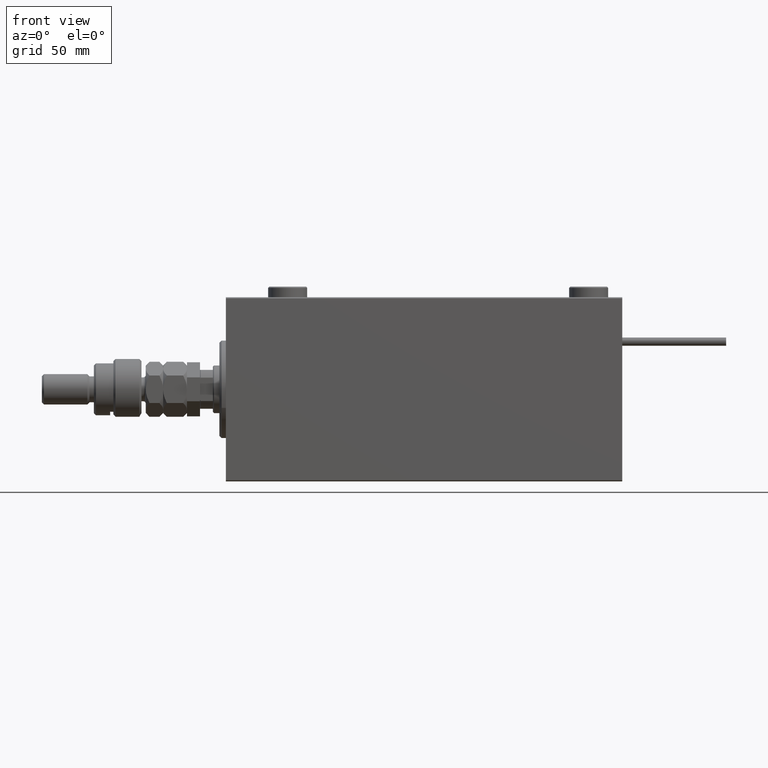
[diagram: clean part render]
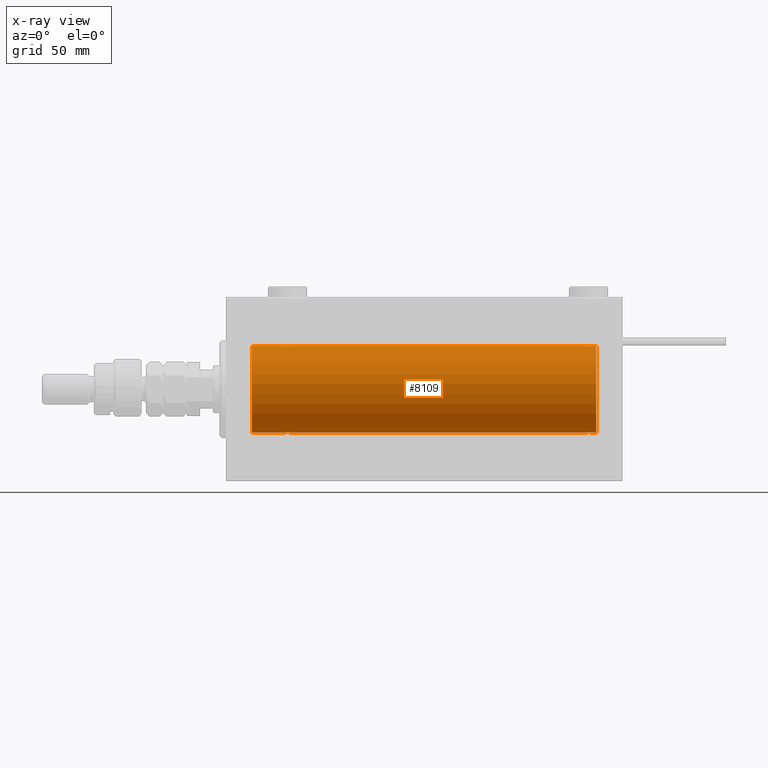
[diagram: x-ray — body ghosted, one internal face saturated and labeled with its STEP entity id]
A machine part, front view, then the same camera in x-ray: the body is ghosted and one INTERNAL B-rep face — a face not visible from any outside direction — is saturated and labeled: STEP entity #8109.
In plain terms, the highlighted cylindrical surface (partial cylindrical patch) has radius 20 mm, axis along (-1, -0, -0).
Its self-contained STEP definition (entity closure, byte-faithful):
#442 = AXIS2_PLACEMENT_3D ( 'NONE', #46561, #5329, #29827 ) ;
#1866 = CARTESIAN_POINT ( 'NONE',  ( 28.76077256031568652, -1.987205673487814739, 19.90104673894211018 ) ) ;
#1987 = CARTESIAN_POINT ( 'NONE',  ( 30.50000000000000000, 2.449293582768389958E-15, -20.00000000000000000 ) ) ;
#2045 = CARTESIAN_POINT ( 'NONE',  ( 166.2797105420553407, -1.589957321664216661, 19.93683391378736403 ) ) ;
#2224 = VERTEX_POINT ( 'NONE', #46183 ) ;
#2262 = CARTESIAN_POINT ( 'NONE',  ( 30.09941524884030528, -1.228758402364235724, -19.96307487248084911 ) ) ;
#2683 = DIRECTION ( 'NONE',  ( -1.000000000000000000, -0.000000000000000000, -0.000000000000000000 ) ) ;
#2915 = EDGE_CURVE ( 'NONE', #19565, #9899, #53775, .T. ) ;
#4389 = VECTOR ( 'NONE', #2683, 1000.000000000000000 ) ;
#4486 = CARTESIAN_POINT ( 'NONE',  ( 167.7635814409141233, -1.986835489085827966, -19.90108393514800511 ) ) ;
#4630 = DIRECTION ( 'NONE',  ( -1.000000000000000000, -0.000000000000000000, -0.000000000000000000 ) ) ;
#5299 = CARTESIAN_POINT ( 'NONE',  ( 169.2482591346001470, -1.005710574260847645, -19.97614991974274190 ) ) ;
#5329 = DIRECTION ( 'NONE',  ( -1.000000000000000000, -0.000000000000000000, -0.000000000000000000 ) ) ;
#5435 = CARTESIAN_POINT ( 'NONE',  ( 26.90058475115969827, -1.228758402364238833, 19.96307487248084911 ) ) ;
#5564 = CARTESIAN_POINT ( 'NONE',  ( 30.24825913460018256, -1.005710574260840096, -19.97614991974273835 ) ) ;
#5836 = CARTESIAN_POINT ( 'NONE',  ( 26.90225308445270613, -1.230936344679281369, -19.96293863536309487 ) ) ;
#6659 = CARTESIAN_POINT ( 'NONE',  ( 29.82306668919470027, -1.505486175075773314, -19.94347168299866979 ) ) ;
#6672 = CARTESIAN_POINT ( 'NONE',  ( 165.4999999999999716, -1.553188236289650144E-23, 20.00000000000000000 ) ) ;
#6995 = CARTESIAN_POINT ( 'NONE',  ( 168.8209690684728628, -1.507328959728495121, 19.94333197382385592 ) ) ;
#7061 = VECTOR ( 'NONE', #34896, 1000.000000000000000 ) ;
#7252 = CARTESIAN_POINT ( 'NONE',  ( 12.00000000000001066, 0.000000000000000000, 0.000000000000000000 ) ) ;
#7270 = CARTESIAN_POINT ( 'NONE',  ( 169.0977469155473045, -1.230936344679282257, 19.96293863536309843 ) ) ;
#7549 = CARTESIAN_POINT ( 'NONE',  ( 168.0164853291890950, -1.936551476643003200, 19.90603968831099024 ) ) ;
#8109 = ADVANCED_FACE ( 'NONE', ( #30095 ), #13033, .F. ) ;
#8279 = DIRECTION ( 'NONE',  ( -1.000000000000000000, -0.000000000000000000, -0.000000000000000000 ) ) ;
#8352 = CARTESIAN_POINT ( 'NONE',  ( 165.4999999999999716, -1.510525576716094838E-14, -20.00000000000000000 ) ) ;
#8934 = ORIENTED_EDGE ( 'NONE', *, *, #48884, .F. ) ;
#9127 = EDGE_CURVE ( 'NONE', #33357, #12935, #42286, .T. ) ;
#9155 = CARTESIAN_POINT ( 'NONE',  ( 166.2819458052784398, -1.591668229360214903, -19.93669678979811977 ) ) ;
#9424 = CARTESIAN_POINT ( 'NONE',  ( 166.8565147126695649, -1.898187925611359850, -19.90978194174746463 ) ) ;
#9899 = VERTEX_POINT ( 'NONE', #10090 ) ;
#10082 = ORIENTED_EDGE ( 'NONE', *, *, #40158, .T. ) ;
#10090 = CARTESIAN_POINT ( 'NONE',  ( 171.0000000000000000, 0.000000000000000000, 20.00000000000000000 ) ) ;
#10098 = CARTESIAN_POINT ( 'NONE',  ( 29.01648532918905232, -1.936551476643010528, 19.90603968831098314 ) ) ;
#10229 = CARTESIAN_POINT ( 'NONE',  ( 30.50000000000000000, -0.2610801504281901053, -20.00000000000000000 ) ) ;
#10371 = CARTESIAN_POINT ( 'NONE',  ( 27.85369326075355190, -1.897222639860601578, 19.90987429971495715 ) ) ;
#11381 = CARTESIAN_POINT ( 'NONE',  ( 169.2468697630307304, -1.008108445278674825, 19.97602680192586888 ) ) ;
#11614 = LINE ( 'NONE', #28389, #50826 ) ;
#11663 = CARTESIAN_POINT ( 'NONE',  ( 167.7607725603157007, -1.987205673487809854, 19.90104673894210308 ) ) ;
#12459 = CARTESIAN_POINT ( 'NONE',  ( 168.7202894579446593, -1.589957321664208001, -19.93683391378736403 ) ) ;
#12552 = VERTEX_POINT ( 'NONE', #33545 ) ;
#12731 = CARTESIAN_POINT ( 'NONE',  ( 165.7531302369692980, -1.008108445278692589, -19.97602680192585822 ) ) ;
#12786 = CARTESIAN_POINT ( 'NONE',  ( 30.50000000000000000, -9.453669475664189070E-16, 20.00000000000000000 ) ) ;
#12935 = VERTEX_POINT ( 'NONE', #22181 ) ;
#13033 = CYLINDRICAL_SURFACE ( 'NONE', #442, 20.00000000000000000 ) ;
#13268 = CARTESIAN_POINT ( 'NONE',  ( 168.3882943720709022, -1.796691196322330653, -19.91919800395357143 ) ) ;
#13459 = EDGE_CURVE ( 'NONE', #33357, #35495, #14398, .T. ) ;
#13687 = CARTESIAN_POINT ( 'NONE',  ( 29.71805419472152110, -1.591668229360197806, 19.93669678979812687 ) ) ;
#13735 = CARTESIAN_POINT ( 'NONE',  ( 171.0000000000000000, 0.000000000000000000, 20.00000000000000000 ) ) ;
#13918 = CARTESIAN_POINT ( 'NONE',  ( 26.50000000000000355, -6.257798774011376898E-15, -20.00000000000000000 ) ) ;
#13934 = CARTESIAN_POINT ( 'NONE',  ( 171.0000000000000000, 0.000000000000000000, 0.000000000000000000 ) ) ;
#14075 = CARTESIAN_POINT ( 'NONE',  ( 27.17903093152711591, -1.507328959728495787, -19.94333197382386302 ) ) ;
#14343 = CARTESIAN_POINT ( 'NONE',  ( 27.49932780860757475, -1.736582545981378845, -19.92459705242981371 ) ) ;
#14398 = LINE ( 'NONE', #18783, #22212 ) ;
#14882 = CARTESIAN_POINT ( 'NONE',  ( 27.61420923329272981, -1.797933656607920039, -19.91908554465558367 ) ) ;
#14943 = CARTESIAN_POINT ( 'NONE',  ( 166.6117056279290409, -1.796691196322318218, 19.91919800395357143 ) ) ;
#15491 = CARTESIAN_POINT ( 'NONE',  ( 165.7517408653997677, -1.005710574260844758, 19.97614991974274190 ) ) ;
#15834 = VECTOR ( 'NONE', #4630, 1000.000000000000000 ) ;
#15984 = DIRECTION ( 'NONE',  ( -1.000000000000000000, -0.000000000000000000, -0.000000000000000000 ) ) ;
#16843 = CARTESIAN_POINT ( 'NONE',  ( 166.4993278086076032, -1.736582545981393277, -19.92459705242980661 ) ) ;
#16847 = VERTEX_POINT ( 'NONE', #31060 ) ;
#16991 = CARTESIAN_POINT ( 'NONE',  ( 171.0000000000000000, 2.449293598294706513E-15, -20.00000000000000000 ) ) ;
#17117 = CARTESIAN_POINT ( 'NONE',  ( 165.5532051580820223, -0.5270924491156762093, -19.99450181871976184 ) ) ;
#17535 = CARTESIAN_POINT ( 'NONE',  ( 30.50000000000000000, -0.2644051013330992461, 19.99999999999999645 ) ) ;
#17538 = LINE ( 'NONE', #16991, #15834 ) ;
#17813 = CARTESIAN_POINT ( 'NONE',  ( 26.75174086539980678, -1.005710574260844092, 19.97614991974273835 ) ) ;
#18218 = VERTEX_POINT ( 'NONE', #32021 ) ;
#18279 = VERTEX_POINT ( 'NONE', #32571 ) ;
#18336 = CARTESIAN_POINT ( 'NONE',  ( 29.14348528733042443, -1.898187925611342974, 19.90978194174746818 ) ) ;
#18366 = ORIENTED_EDGE ( 'NONE', *, *, #44180, .T. ) ;
#18386 = LINE ( 'NONE', #13735, #7061 ) ;
#18783 = CARTESIAN_POINT ( 'NONE',  ( 171.0000000000000000, 0.000000000000000000, 20.00000000000000000 ) ) ;
#19002 = CARTESIAN_POINT ( 'NONE',  ( 29.14630673924644100, -1.897222639860597360, -19.90987429971497136 ) ) ;
#19124 = ORIENTED_EDGE ( 'NONE', *, *, #22037, .T. ) ;
#19361 = B_SPLINE_CURVE_WITH_KNOTS ( 'NONE', 3,
 ( #34584, #31277, #26614, #17813, #5435, #22475, #21940, #34851, #38703, #10371, #39240, #43100, #47762, #51366, #1866, #10098, #18336, #34319, #47493, #13687, #51086, #52168, #22737, #43367, #17535, #27147 ),
 .UNSPECIFIED., .F., .F.,
 ( 4, 2, 2, 2, 2, 2, 2, 2, 2, 2, 2, 2, 4 ),
 ( 0.006256819553329818866, 0.007038738568778795009, 0.007820657584227770284, 0.008211617091952255754, 0.008602576599676739488, 0.008993536107401223223, 0.009384495615125706958, 0.009775455122850190692, 0.01016641463057467443, 0.01055737413829915816, 0.01094833364602364190, 0.01173025266147261110, 0.01251217167692157857 ),
 .UNSPECIFIED. ) ;
#19565 = VERTEX_POINT ( 'NONE', #53353 ) ;
#19613 = CARTESIAN_POINT ( 'NONE',  ( 165.4999999999999716, -1.553188236289650144E-23, 20.00000000000000000 ) ) ;
#20674 = EDGE_CURVE ( 'NONE', #2224, #25868, #35627, .T. ) ;
#21242 = CARTESIAN_POINT ( 'NONE',  ( 168.5030655633959782, -1.735203193119897014, -19.92471783160911158 ) ) ;
#21515 = CARTESIAN_POINT ( 'NONE',  ( 166.1790309315270804, -1.507328959728508666, -19.94333197382385947 ) ) ;
#21940 = CARTESIAN_POINT ( 'NONE',  ( 27.27971054205535495, -1.589957321664213552, 19.93683391378736047 ) ) ;
#22037 = EDGE_CURVE ( 'NONE', #53749, #2224, #41529, .T. ) ;
#22181 = CARTESIAN_POINT ( 'NONE',  ( 169.4999999999999716, 6.438096668033870730E-15, 20.00000000000000000 ) ) ;
#22212 = VECTOR ( 'NONE', #30657, 1000.000000000000000 ) ;
#22328 = CARTESIAN_POINT ( 'NONE',  ( 29.38829437207092354, -1.796691196322319994, -19.91919800395357498 ) ) ;
#22421 = B_SPLINE_CURVE_WITH_KNOTS ( 'NONE', 3,
 ( #50407, #37757, #45988, #5299, #33632, #30061, #12459, #21242, #13268, #29794, #25659, #4486, #38026, #33907, #46798, #38557, #9424, #25120, #16843, #9155, #21515, #42412, #12731, #17117, #50943, #8352 ),
 .UNSPECIFIED., .F., .F.,
 ( 4, 2, 2, 2, 2, 2, 2, 2, 2, 2, 2, 2, 4 ),
 ( 0.006256819553329819733, 0.007038738568778733426, 0.007820657584227647119, 0.008211617091952132588, 0.008602576599676618058, 0.008993536107401105262, 0.009384495615125590731, 0.009775455122850077935, 0.01016641463057456340, 0.01055737413829905061, 0.01094833364602353781, 0.01173025266147256773, 0.01251217167692160112 ),
 .UNSPECIFIED. ) ;
#22475 = CARTESIAN_POINT ( 'NONE',  ( 27.17693331080529973, -1.505486175075776645, 19.94347168299866979 ) ) ;
#22540 = ORIENTED_EDGE ( 'NONE', *, *, #9127, .T. ) ;
#22601 = CARTESIAN_POINT ( 'NONE',  ( 26.50000000000000355, -6.257798774011376898E-15, -20.00000000000000000 ) ) ;
#22737 = CARTESIAN_POINT ( 'NONE',  ( 30.24686976303072328, -1.008108445278688148, 19.97602680192586533 ) ) ;
#23416 = CARTESIAN_POINT ( 'NONE',  ( 29.01923512135277150, -1.935816449315127308, -19.90611141657401362 ) ) ;
#23476 = CARTESIAN_POINT ( 'NONE',  ( 165.9005847511596983, -1.228758402364247049, 19.96307487248084911 ) ) ;
#23533 = ORIENTED_EDGE ( 'NONE', *, *, #36305, .F. ) ;
#23744 = CARTESIAN_POINT ( 'NONE',  ( 166.8536932607535164, -1.897222639860597360, 19.90987429971496780 ) ) ;
#25055 = CARTESIAN_POINT ( 'NONE',  ( 12.00000000000001066, 0.000000000000000000, 20.00000000000000000 ) ) ;
#25120 = CARTESIAN_POINT ( 'NONE',  ( 166.6142092332927405, -1.797933656607938691, -19.91908554465557657 ) ) ;
#25136 = AXIS2_PLACEMENT_3D ( 'NONE', #7252, #44609, #48205 ) ;
#25659 = CARTESIAN_POINT ( 'NONE',  ( 168.0192351213528070, -1.935816449315140408, -19.90611141657402072 ) ) ;
#25868 = VERTEX_POINT ( 'NONE', #25055 ) ;
#26614 = CARTESIAN_POINT ( 'NONE',  ( 26.55244937117491943, -0.5243189001515041747, 19.99457699142850231 ) ) ;
#26738 = CARTESIAN_POINT ( 'NONE',  ( 29.50306556339602082, -1.735203193119896348, -19.92471783160911158 ) ) ;
#27147 = CARTESIAN_POINT ( 'NONE',  ( 30.50000000000000000, -9.453669475664189070E-16, 20.00000000000000000 ) ) ;
#27336 = CARTESIAN_POINT ( 'NONE',  ( 165.4999999999999716, -0.2610801504281917151, 20.00000000000000000 ) ) ;
#27548 = CARTESIAN_POINT ( 'NONE',  ( 27.85651471266958978, -1.898187925611340976, -19.90978194174746818 ) ) ;
#27608 = CARTESIAN_POINT ( 'NONE',  ( 167.2364185590858483, -1.986835489085821527, 19.90108393514801932 ) ) ;
#27710 = VECTOR ( 'NONE', #8279, 1000.000000000000000 ) ;
#28160 = CARTESIAN_POINT ( 'NONE',  ( 169.4467948419180345, -0.5270924491156583347, 19.99450181871976184 ) ) ;
#28389 = CARTESIAN_POINT ( 'NONE',  ( 171.0000000000000000, 0.000000000000000000, 20.00000000000000000 ) ) ;
#28438 = CARTESIAN_POINT ( 'NONE',  ( 168.1434852873304067, -1.898187925611338978, 19.90978194174746818 ) ) ;
#29794 = CARTESIAN_POINT ( 'NONE',  ( 168.1463067392464268, -1.897222639860608906, -19.90987429971496070 ) ) ;
#29827 = DIRECTION ( 'NONE',  ( 0.000000000000000000, 0.000000000000000000, 1.000000000000000000 ) ) ;
#30061 = CARTESIAN_POINT ( 'NONE',  ( 168.8230666891946896, -1.505486175075791966, -19.94347168299867690 ) ) ;
#30095 = FACE_OUTER_BOUND ( 'NONE', #33157, .T. ) ;
#30657 = DIRECTION ( 'NONE',  ( -1.000000000000000000, -0.000000000000000000, -0.000000000000000000 ) ) ;
#30869 = CARTESIAN_POINT ( 'NONE',  ( 28.23922743968432414, -1.987205673487811630, -19.90104673894211018 ) ) ;
#31060 = CARTESIAN_POINT ( 'NONE',  ( 30.50000000000000000, 2.449293582768389958E-15, -20.00000000000000000 ) ) ;
#31135 = CARTESIAN_POINT ( 'NONE',  ( 26.55320515808203297, -0.5270924491156746550, -19.99450181871975829 ) ) ;
#31277 = CARTESIAN_POINT ( 'NONE',  ( 26.50000000000001421, -0.2610801504281932695, 20.00000000000000000 ) ) ;
#31408 = CARTESIAN_POINT ( 'NONE',  ( 29.72028945794465216, -1.589957321664210665, -19.93683391378736047 ) ) ;
#31732 = CARTESIAN_POINT ( 'NONE',  ( 167.6305887171083953, -2.000100592782557474, 19.89973863218036243 ) ) ;
#32021 = CARTESIAN_POINT ( 'NONE',  ( 169.4999999999999716, 2.449293582762473501E-15, -20.00000000000000000 ) ) ;
#32552 = ORIENTED_EDGE ( 'NONE', *, *, #40227, .T. ) ;
#32571 = CARTESIAN_POINT ( 'NONE',  ( 165.4999999999999716, -1.510525576716094838E-14, -20.00000000000000000 ) ) ;
#33157 = EDGE_LOOP ( 'NONE', ( #42314, #48341, #10082, #34255, #32552, #19124, #36691, #8934, #18366, #43557, #22540, #23533 ) ) ;
#33357 = VERTEX_POINT ( 'NONE', #6672 ) ;
#33545 = CARTESIAN_POINT ( 'NONE',  ( 26.50000000000000355, -1.552596590610734385E-23, 20.00000000000000000 ) ) ;
#33599 = EDGE_CURVE ( 'NONE', #18279, #16847, #17538, .T. ) ;
#33632 = CARTESIAN_POINT ( 'NONE',  ( 169.0994152488403302, -1.228758402364252822, -19.96307487248083845 ) ) ;
#33907 = CARTESIAN_POINT ( 'NONE',  ( 167.3694112828916616, -2.000100592782568576, -19.89973863218036243 ) ) ;
#34255 = ORIENTED_EDGE ( 'NONE', *, *, #33599, .T. ) ;
#34319 = CARTESIAN_POINT ( 'NONE',  ( 29.38579076670728440, -1.797933656607920261, 19.91908554465558367 ) ) ;
#34584 = CARTESIAN_POINT ( 'NONE',  ( 26.50000000000000355, -1.552596590610734385E-23, 20.00000000000000000 ) ) ;
#34713 = CARTESIAN_POINT ( 'NONE',  ( 30.44755062882508412, -0.5243189001515006220, -19.99457699142850231 ) ) ;
#34851 = CARTESIAN_POINT ( 'NONE',  ( 27.49693443660398273, -1.735203193119900344, 19.92471783160911158 ) ) ;
#34896 = DIRECTION ( 'NONE',  ( -1.000000000000000000, -0.000000000000000000, -0.000000000000000000 ) ) ;
#35495 = VERTEX_POINT ( 'NONE', #12786 ) ;
#35627 = CIRCLE ( 'NONE', #25136, 20.00000000000000000 ) ;
#35786 = CARTESIAN_POINT ( 'NONE',  ( 27.98351467081095123, -1.936551476643008529, -19.90603968831098314 ) ) ;
#36305 = EDGE_CURVE ( 'NONE', #9899, #12935, #18386, .T. ) ;
#36394 = CARTESIAN_POINT ( 'NONE',  ( 166.1769333108053104, -1.505486175075782196, 19.94347168299868045 ) ) ;
#36691 = ORIENTED_EDGE ( 'NONE', *, *, #20674, .T. ) ;
#37757 = CARTESIAN_POINT ( 'NONE',  ( 169.4999999999999432, -0.2610801504281899388, -19.99999999999999645 ) ) ;
#38026 = CARTESIAN_POINT ( 'NONE',  ( 167.6336519614244764, -1.999898234284076981, -19.89975896996866211 ) ) ;
#38557 = CARTESIAN_POINT ( 'NONE',  ( 166.9835146708108766, -1.936551476643014080, -19.90603968831098669 ) ) ;
#38703 = CARTESIAN_POINT ( 'NONE',  ( 27.61170562792909777, -1.796691196322324213, 19.91919800395357498 ) ) ;
#39240 = CARTESIAN_POINT ( 'NONE',  ( 27.98076487864723561, -1.935816449315131749, 19.90611141657401362 ) ) ;
#39450 = B_SPLINE_CURVE_WITH_KNOTS ( 'NONE', 3,
 ( #1987, #10229, #34713, #5564, #2262, #6659, #31408, #26738, #22328, #19002, #23416, #48164, #43492, #48435, #30869, #35786, #27548, #14882, #14343, #43759, #14075, #5836, #52293, #31135, #47888, #22601 ),
 .UNSPECIFIED., .F., .F.,
 ( 4, 2, 2, 2, 2, 2, 2, 2, 2, 2, 2, 2, 4 ),
 ( 0.006256819553329837948, 0.007038738568778813223, 0.007820657584227789366, 0.008211617091952273101, 0.008602576599676756836, 0.008993536107401240570, 0.009384495615125724305, 0.009775455122850208040, 0.01016641463057469177, 0.01055737413829917551, 0.01094833364602365924, 0.01173025266147262498, 0.01251217167692159245 ),
 .UNSPECIFIED. ) ;
#40158 = EDGE_CURVE ( 'NONE', #18218, #18279, #22421, .T. ) ;
#40227 = EDGE_CURVE ( 'NONE', #16847, #53749, #39450, .T. ) ;
#40239 = CARTESIAN_POINT ( 'NONE',  ( 169.4999999999999716, 6.438096668033870730E-15, 20.00000000000000000 ) ) ;
#40509 = CARTESIAN_POINT ( 'NONE',  ( 168.5006721913923968, -1.736582545981380177, 19.92459705242980661 ) ) ;
#40609 = CARTESIAN_POINT ( 'NONE',  ( 171.0000000000000000, 2.449293598294706513E-15, -20.00000000000000000 ) ) ;
#40786 = CARTESIAN_POINT ( 'NONE',  ( 169.5000000000000284, -0.2644051013331001343, 20.00000000000000711 ) ) ;
#41529 = LINE ( 'NONE', #53651, #27710 ) ;
#42286 = B_SPLINE_CURVE_WITH_KNOTS ( 'NONE', 3,
 ( #19613, #27336, #44626, #15491, #23476, #36394, #2045, #44905, #14943, #23744, #49050, #27608, #49333, #31732, #11663, #7549, #28438, #48774, #40509, #53442, #6995, #7270, #11381, #28160, #40786, #40239 ),
 .UNSPECIFIED., .F., .F.,
 ( 4, 2, 2, 2, 2, 2, 2, 2, 2, 2, 2, 2, 4 ),
 ( 0.006256819553329832743, 0.007038738568778792407, 0.007820657584227751202, 0.008211617091952231468, 0.008602576599676711733, 0.008993536107401190263, 0.009384495615125668794, 0.009775455122850149059, 0.01016641463057462759, 0.01055737413829910612, 0.01094833364602358639, 0.01173025266147260243, 0.01251217167692161847 ),
 .UNSPECIFIED. ) ;
#42314 = ORIENTED_EDGE ( 'NONE', *, *, #2915, .F. ) ;
#42412 = CARTESIAN_POINT ( 'NONE',  ( 165.9022530844526671, -1.230936344679295136, -19.96293863536308422 ) ) ;
#43100 = CARTESIAN_POINT ( 'NONE',  ( 28.23641855908585541, -1.986835489085820194, 19.90108393514801222 ) ) ;
#43356 = DIRECTION ( 'NONE',  ( -1.000000000000000000, 0.000000000000000000, 0.000000000000000000 ) ) ;
#43367 = CARTESIAN_POINT ( 'NONE',  ( 30.44679484191798124, -0.5270924491156695479, 19.99450181871975829 ) ) ;
#43492 = CARTESIAN_POINT ( 'NONE',  ( 28.63365196142447644, -1.999898234284065657, -19.89975896996865856 ) ) ;
#43557 = ORIENTED_EDGE ( 'NONE', *, *, #13459, .F. ) ;
#43759 = CARTESIAN_POINT ( 'NONE',  ( 27.28194580527850022, -1.591668229360200026, -19.93669678979812687 ) ) ;
#44180 = EDGE_CURVE ( 'NONE', #12552, #35495, #19361, .T. ) ;
#44609 = DIRECTION ( 'NONE',  ( -1.000000000000000000, 0.000000000000000000, 0.000000000000000000 ) ) ;
#44626 = CARTESIAN_POINT ( 'NONE',  ( 165.5524493711749301, -0.5243189001515030645, 19.99457699142850231 ) ) ;
#44905 = CARTESIAN_POINT ( 'NONE',  ( 166.4969344366039365, -1.735203193119901455, 19.92471783160911158 ) ) ;
#45988 = CARTESIAN_POINT ( 'NONE',  ( 169.4475506288250415, -0.5243189001515055070, -19.99457699142850231 ) ) ;
#46183 = CARTESIAN_POINT ( 'NONE',  ( 12.00000000000001066, 2.449293598294706513E-15, -20.00000000000000000 ) ) ;
#46561 = CARTESIAN_POINT ( 'NONE',  ( 171.0000000000000000, 0.000000000000000000, 0.000000000000000000 ) ) ;
#46798 = CARTESIAN_POINT ( 'NONE',  ( 167.2392274396842424, -1.987205673487821178, -19.90104673894210308 ) ) ;
#47493 = CARTESIAN_POINT ( 'NONE',  ( 29.50067219139245367, -1.736582545981377734, 19.92459705242981371 ) ) ;
#47762 = CARTESIAN_POINT ( 'NONE',  ( 28.36634803857551290, -1.999898234284068321, 19.89975896996865856 ) ) ;
#47888 = CARTESIAN_POINT ( 'NONE',  ( 26.50000000000000711, -0.2644051013331055744, -19.99999999999999645 ) ) ;
#48164 = CARTESIAN_POINT ( 'NONE',  ( 28.76358144091414815, -1.986835489085816198, -19.90108393514801222 ) ) ;
#48205 = DIRECTION ( 'NONE',  ( 0.000000000000000000, 0.000000000000000000, 1.000000000000000000 ) ) ;
#48325 = LINE ( 'NONE', #40609, #4389 ) ;
#48341 = ORIENTED_EDGE ( 'NONE', *, *, #51587, .T. ) ;
#48435 = CARTESIAN_POINT ( 'NONE',  ( 28.36941128289166514, -2.000100592782555697, -19.89973863218036598 ) ) ;
#48774 = CARTESIAN_POINT ( 'NONE',  ( 168.3857907667072880, -1.797933656607917152, 19.91908554465558367 ) ) ;
#48884 = EDGE_CURVE ( 'NONE', #12552, #25868, #11614, .T. ) ;
#49050 = CARTESIAN_POINT ( 'NONE',  ( 166.9807648786472782, -1.935816449315135523, 19.90611141657401006 ) ) ;
#49333 = CARTESIAN_POINT ( 'NONE',  ( 167.3663480385754951, -1.999898234284065657, 19.89975896996866211 ) ) ;
#50407 = CARTESIAN_POINT ( 'NONE',  ( 169.4999999999999716, 2.449293582762473501E-15, -20.00000000000000000 ) ) ;
#50826 = VECTOR ( 'NONE', #15984, 1000.000000000000000 ) ;
#50943 = CARTESIAN_POINT ( 'NONE',  ( 165.5000000000000284, -0.2644051013331212840, -20.00000000000000000 ) ) ;
#51086 = CARTESIAN_POINT ( 'NONE',  ( 29.82096906847290896, -1.507328959728495121, 19.94333197382386302 ) ) ;
#51366 = CARTESIAN_POINT ( 'NONE',  ( 28.63058871710834552, -2.000100592782559250, 19.89973863218036598 ) ) ;
#51587 = EDGE_CURVE ( 'NONE', #19565, #18218, #48325, .T. ) ;
#52168 = CARTESIAN_POINT ( 'NONE',  ( 30.09774691554730808, -1.230936344679279593, 19.96293863536309487 ) ) ;
#52293 = CARTESIAN_POINT ( 'NONE',  ( 26.75313023696928738, -1.008108445278691478, -19.97602680192586533 ) ) ;
#52420 = DIRECTION ( 'NONE',  ( 0.000000000000000000, 0.000000000000000000, 1.000000000000000000 ) ) ;
#52891 = AXIS2_PLACEMENT_3D ( 'NONE', #13934, #43356, #52420 ) ;
#53353 = CARTESIAN_POINT ( 'NONE',  ( 171.0000000000000000, 2.449293598294706513E-15, -20.00000000000000000 ) ) ;
#53442 = CARTESIAN_POINT ( 'NONE',  ( 168.7180541947214465, -1.591668229360202025, 19.93669678979812332 ) ) ;
#53651 = CARTESIAN_POINT ( 'NONE',  ( 171.0000000000000000, 2.449293598294706513E-15, -20.00000000000000000 ) ) ;
#53749 = VERTEX_POINT ( 'NONE', #13918 ) ;
#53775 = CIRCLE ( 'NONE', #52891, 20.00000000000000000 ) ;